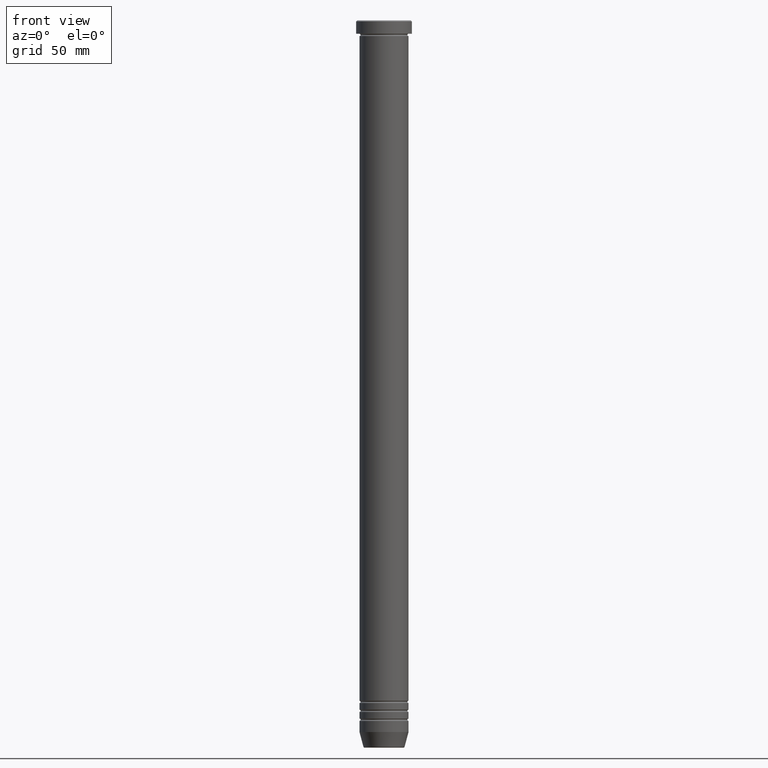
[diagram: clean part render]
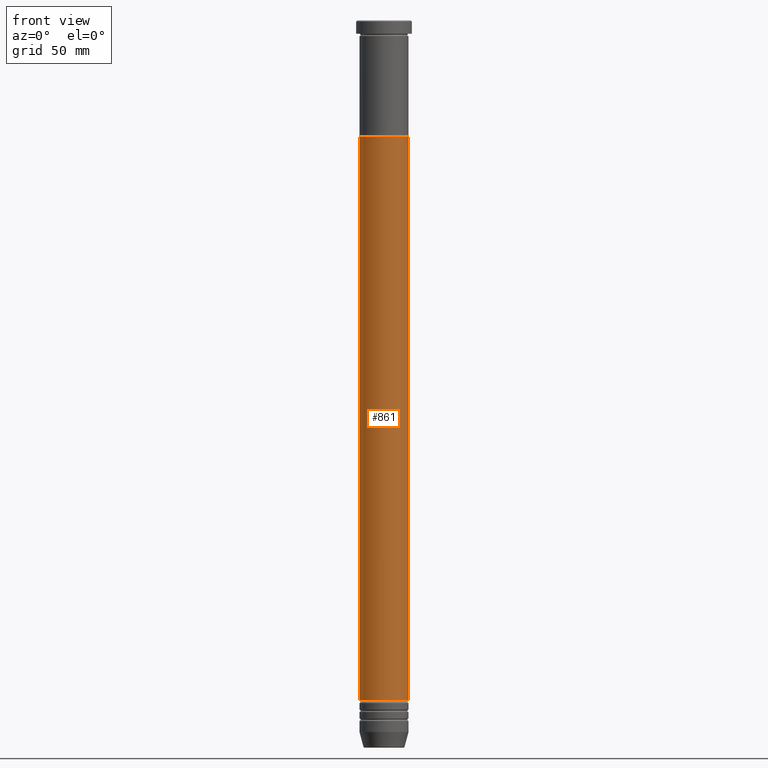
[diagram: same view with one face highlighted and labeled with its STEP entity id]
A machine part, front view. The second image highlights one B-rep face of the part: STEP entity #861.
In plain terms, the highlighted cylindrical surface (edge-blend (fillet) strip) has radius 11 mm, axis along (-0, -0, 1).
Its self-contained STEP definition (entity closure, byte-faithful):
#3 = EDGE_CURVE ( 'NONE', #43, #169, #905, .T. ) ;
#36 = CARTESIAN_POINT ( 'NONE',  ( 10.99999999999999467, 0.000000000000000000, -304.9999999999999432 ) ) ;
#43 = VERTEX_POINT ( 'NONE', #36 ) ;
#102 = EDGE_LOOP ( 'NONE', ( #227, #867, #826, #1072 ) ) ;
#103 = CIRCLE ( 'NONE', #868, 11.00000000000000000 ) ;
#124 = CARTESIAN_POINT ( 'NONE',  ( -10.99999999999999645, 1.347111479062088010E-15, 0.000000000000000000 ) ) ;
#141 = LINE ( 'NONE', #124, #601 ) ;
#148 = DIRECTION ( 'NONE',  ( -0.000000000000000000, -0.000000000000000000, 1.000000000000000000 ) ) ;
#169 = VERTEX_POINT ( 'NONE', #329 ) ;
#199 = DIRECTION ( 'NONE',  ( 1.000000000000000000, 0.000000000000000000, 0.000000000000000000 ) ) ;
#227 = ORIENTED_EDGE ( 'NONE', *, *, #371, .F. ) ;
#320 = CARTESIAN_POINT ( 'NONE',  ( 0.000000000000000000, 0.000000000000000000, -52.00000000000000000 ) ) ;
#329 = CARTESIAN_POINT ( 'NONE',  ( 11.00000000000000000, 0.000000000000000000, -52.00000000000000000 ) ) ;
#361 = FACE_OUTER_BOUND ( 'NONE', #102, .T. ) ;
#371 = EDGE_CURVE ( 'NONE', #627, #833, #141, .T. ) ;
#380 = AXIS2_PLACEMENT_3D ( 'NONE', #427, #439, #684 ) ;
#427 = CARTESIAN_POINT ( 'NONE',  ( 0.000000000000000000, 0.000000000000000000, -304.9999999999999432 ) ) ;
#439 = DIRECTION ( 'NONE',  ( -0.000000000000000000, -0.000000000000000000, 1.000000000000000000 ) ) ;
#442 = EDGE_CURVE ( 'NONE', #833, #169, #103, .T. ) ;
#460 = CYLINDRICAL_SURFACE ( 'NONE', #888, 10.99999999999999645 ) ;
#483 = DIRECTION ( 'NONE',  ( 1.000000000000000000, 0.000000000000000000, 0.000000000000000000 ) ) ;
#518 = EDGE_CURVE ( 'NONE', #627, #43, #762, .T. ) ;
#601 = VECTOR ( 'NONE', #665, 1000.000000000000000 ) ;
#627 = VERTEX_POINT ( 'NONE', #856 ) ;
#665 = DIRECTION ( 'NONE',  ( -0.000000000000000000, -0.000000000000000000, 1.000000000000000000 ) ) ;
#684 = DIRECTION ( 'NONE',  ( 1.000000000000000000, 0.000000000000000000, 0.000000000000000000 ) ) ;
#703 = CARTESIAN_POINT ( 'NONE',  ( 0.000000000000000000, 0.000000000000000000, 0.000000000000000000 ) ) ;
#762 = CIRCLE ( 'NONE', #380, 10.99999999999999467 ) ;
#776 = CARTESIAN_POINT ( 'NONE',  ( -10.99999999999999822, 1.347111479062088405E-15, -52.00000000000000000 ) ) ;
#803 = DIRECTION ( 'NONE',  ( -0.000000000000000000, -0.000000000000000000, 1.000000000000000000 ) ) ;
#826 = ORIENTED_EDGE ( 'NONE', *, *, #3, .T. ) ;
#833 = VERTEX_POINT ( 'NONE', #776 ) ;
#856 = CARTESIAN_POINT ( 'NONE',  ( -10.99999999999999467, 1.347111479062087813E-15, -304.9999999999999432 ) ) ;
#861 = ADVANCED_FACE ( 'NONE', ( #361 ), #460, .T. ) ;
#867 = ORIENTED_EDGE ( 'NONE', *, *, #518, .T. ) ;
#868 = AXIS2_PLACEMENT_3D ( 'NONE', #320, #148, #483 ) ;
#888 = AXIS2_PLACEMENT_3D ( 'NONE', #703, #803, #199 ) ;
#905 = LINE ( 'NONE', #1003, #1102 ) ;
#924 = DIRECTION ( 'NONE',  ( -0.000000000000000000, -0.000000000000000000, 1.000000000000000000 ) ) ;
#1003 = CARTESIAN_POINT ( 'NONE',  ( 10.99999999999999645, 0.000000000000000000, 0.000000000000000000 ) ) ;
#1072 = ORIENTED_EDGE ( 'NONE', *, *, #442, .F. ) ;
#1102 = VECTOR ( 'NONE', #924, 1000.000000000000000 ) ;